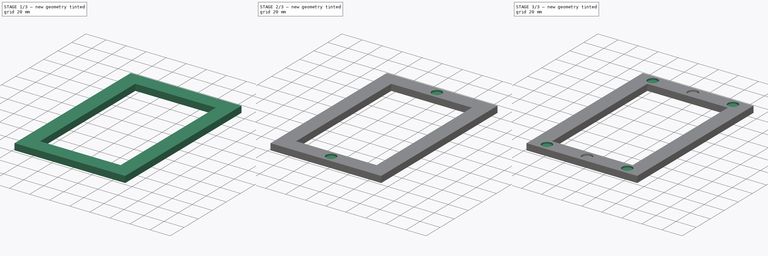
[diagram: build sequence overview — one tinted view per stage of 3, left to right]
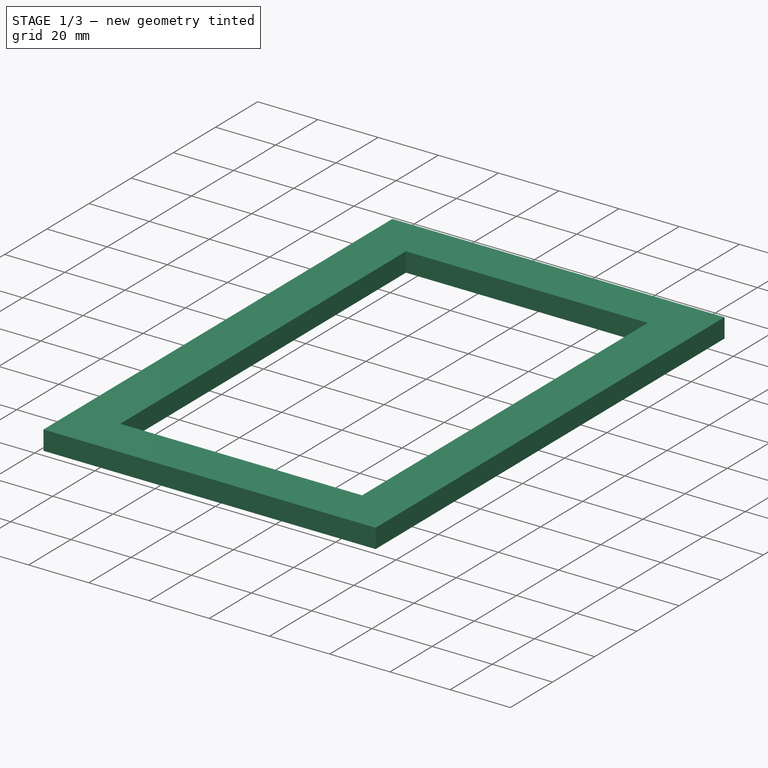
[diagram: stage 1 of 3 — iso view after this stage's code; geometry added in this stage tinted green]
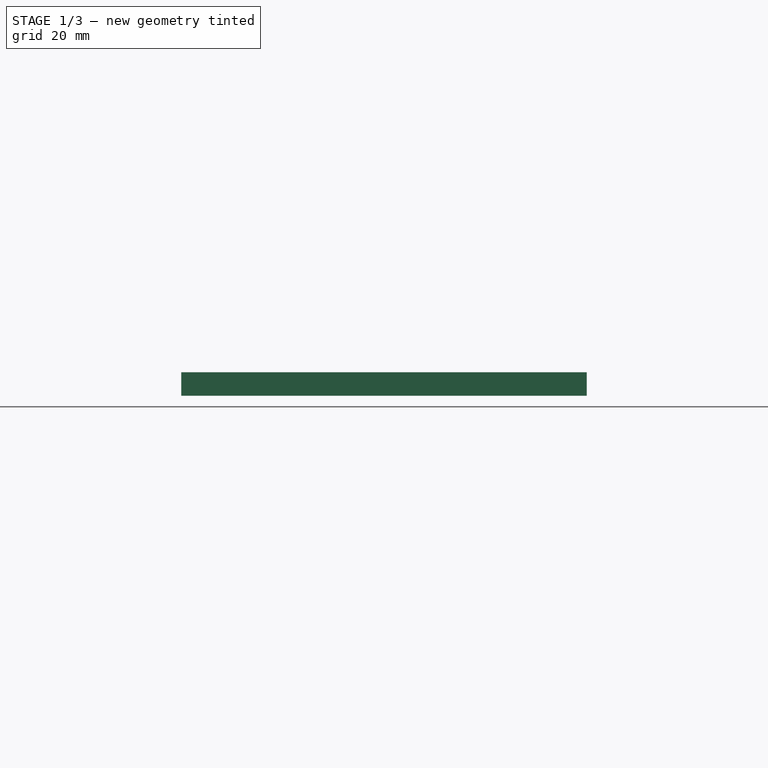
[diagram: stage 1 of 3 — front view after this stage's code; geometry added in this stage tinted green]
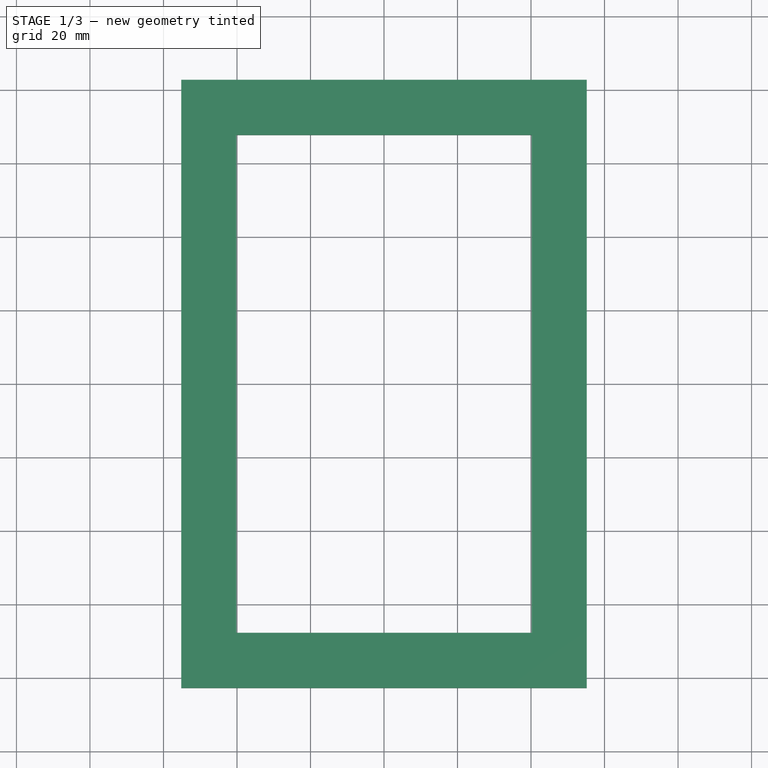
[diagram: stage 1 of 3 — top view after this stage's code; geometry added in this stage tinted green]
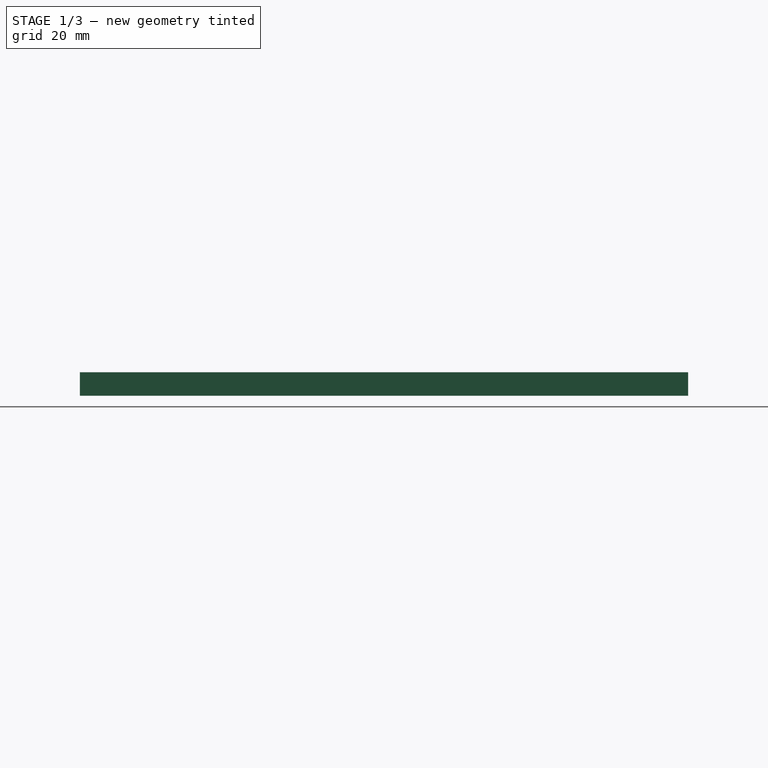
[diagram: stage 1 of 3 — right view after this stage's code; geometry added in this stage tinted green]
FCSTD DOCUMENT  (FreeCAD 0.21R33694 (Git))
Label: PSA_Frame
License: All rights reserved
LicenseURL: http://en.wikipedia.org/wiki/All_rights_reserved
objects: Sketcher::SketchObject×3, PartDesign::Pocket×2, PartDesign::LinearPattern×2, Spreadsheet::Sheet×1, PartDesign::Pad×1, PartDesign::Body×1, App::Part×1
note: 12 computed .brp shape members not serialized (recipe doc carries the construction recipe); baked Part::Feature solids carry a one-line shape summary decoded from their .brp

FEATURE [Spreadsheet::Sheet] Spreadsheet  label="prm"
  cells = A1='card_frame_width_inside; B1(card_frame_width)=80.32; A2='card_frame_height_inside; B2(card_frame_height)=135.5; A3='card_frame_thickness_inside; B3(card_frame_thickness)=6.4; A5='card_back_rest_top; A6='card_back_rest_bottom; A8='card_frame_width_outside; B8(card_frame_width_outside)==B1 + 30; A9='card_frame_height_outside; B9(card_frame_height_outside)==B2 + 30; A10='card_frame_thickness_outside; B10(card_frame_thickness_outside)==B3; A12='outer_frame_width; B12(outer_frame_width)=0; A13='outer_frame_height; B13(outer_frame_height)=0; A14='outer_frame_wall_thickness; B14(outer_frame_wall_thickness)=0; A15='outer_frame_face_thickness; B15(outer_frame_face_thickness)=0; A17='window_width; B17(window_width)=0; A18='window_height; B18(window_height)=0; A20='magnet_diameter; B20(magnet_diameter)=10.05; A21='magnet_depth; B21(magnet_depth)=1.645
FEATURE [Sketcher::SketchObject] Sketch
  FullyConstrained = true
  MapMode = 5
  Support = -> [XY_Plane001]
  expr: Constraints[10] = <<prm>>.card_frame_height_outside
  expr: Constraints[11] = <<prm>>.card_frame_width_outside
  sketch-geometry (5):
    g0: LineSegment StartX=-55.16 StartY=82.75 StartZ=0 EndX=-55.16 EndY=-82.75 EndZ=0
    g1: LineSegment StartX=-55.16 StartY=-82.75 StartZ=0 EndX=55.16 EndY=-82.75 EndZ=0
    g2: LineSegment StartX=55.16 StartY=-82.75 StartZ=0 EndX=55.16 EndY=82.75 EndZ=0
    g3: LineSegment StartX=55.16 StartY=82.75 StartZ=0 EndX=-55.16 EndY=82.75 EndZ=0
    g4: GeomPoint X=0 Y=0 Z=0
  constraints (12):
    c: Coincident(g0,g1)
    c: Coincident(g1,g2)
    c: Coincident(g2,g3)
    c: Coincident(g3,g0)
    c: Horizontal(g1)
    c: Horizontal(g3)
    c: Vertical(g0)
    c: Vertical(g2)
    c: Symmetric(g1,g0,g4)
    c: Coincident(g4,g-1)
    c: DistanceY(g0,g0) = 165.5
    c: DistanceX(g3,g3) = 110.32
FEATURE [PartDesign::Pad] Pad
  Direction = (0,0,1)
  Length = 6.4
  Length2 = 10
  Profile = -> Sketch
  ReferenceAxis = -> Sketch [N_Axis]
  Type = 0
  expr: Length = <<prm>>.card_frame_thickness_outside
FEATURE [Sketcher::SketchObject] Sketch001
  AttachmentOffset = pos=(0,0,6.4) rot=(0,0,1;0rad)
  FullyConstrained = true
  MapMode = 5
  Placement = pos=(0,0,6.4) rot=(0,0,1;0rad)
  Support = -> [XY_Plane001]
  expr: .AttachmentOffset.Base.z = <<prm>>.card_frame_thickness
  expr: Constraints[10] = <<prm>>.card_frame_width
  expr: Constraints[11] = <<prm>>.card_frame_height
  sketch-geometry (5):
    g0: LineSegment StartX=-40.16 StartY=67.75 StartZ=0 EndX=-40.16 EndY=-67.75 EndZ=0
    g1: LineSegment StartX=-40.16 StartY=-67.75 StartZ=0 EndX=40.16 EndY=-67.75 EndZ=0
    g2: LineSegment StartX=40.16 StartY=-67.75 StartZ=0 EndX=40.16 EndY=67.75 EndZ=0
    g3: LineSegment StartX=40.16 StartY=67.75 StartZ=0 EndX=-40.16 EndY=67.75 EndZ=0
    g4: GeomPoint X=0 Y=0 Z=0
  constraints (12):
    c: Coincident(g0,g1)
    c: Coincident(g1,g2)
    c: Coincident(g2,g3)
    c: Coincident(g3,g0)
    c: Horizontal(g1)
    c: Horizontal(g3)
    c: Vertical(g0)
    c: Vertical(g2)
    c: Symmetric(g1,g0,g4)
    c: Coincident(g4,g-1)
    c: DistanceX(g3,g3) = 80.32
    c: DistanceY(g0,g0) = 135.5
FEATURE [PartDesign::Pocket] Pocket
  BaseFeature = -> Pad
  Direction = (0,0,-1)
  Length = 5
  Length2 = 5
  Profile = -> Sketch001
  ReferenceAxis = -> Sketch001 [N_Axis]
  Type = 1
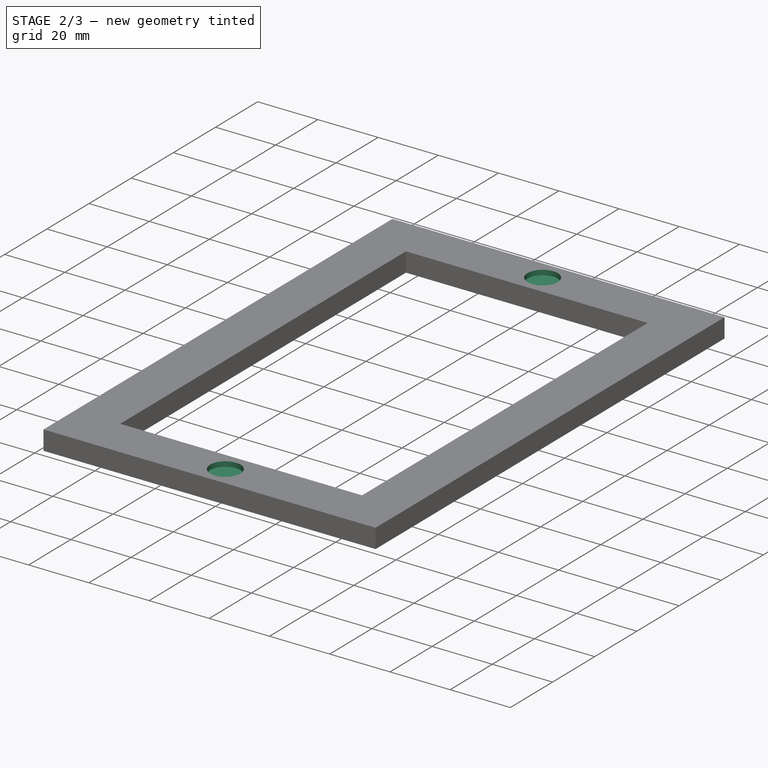
[diagram: stage 2 of 3 — iso view after this stage's code; geometry added in this stage tinted green]
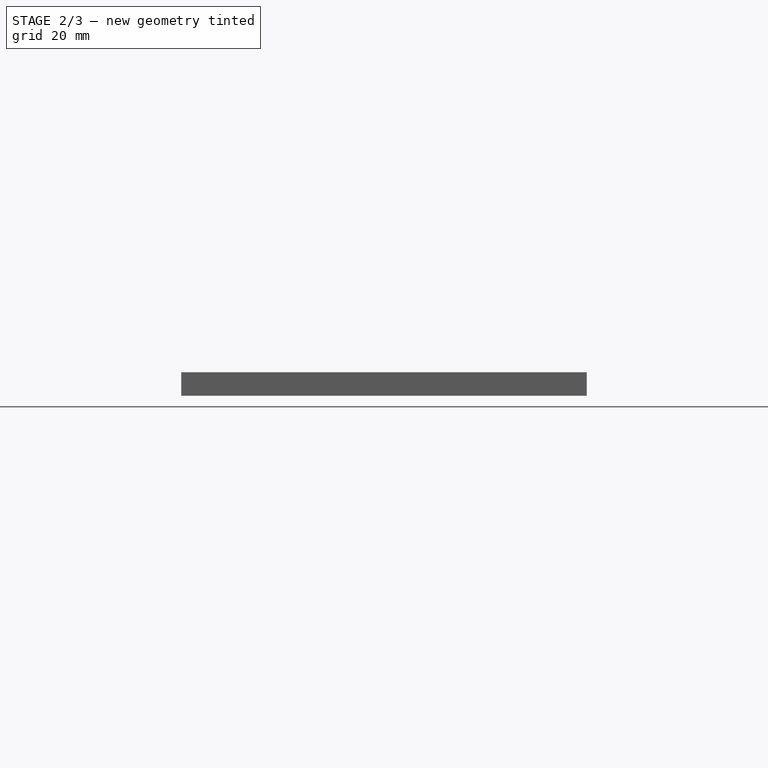
[diagram: stage 2 of 3 — front view after this stage's code; geometry added in this stage tinted green]
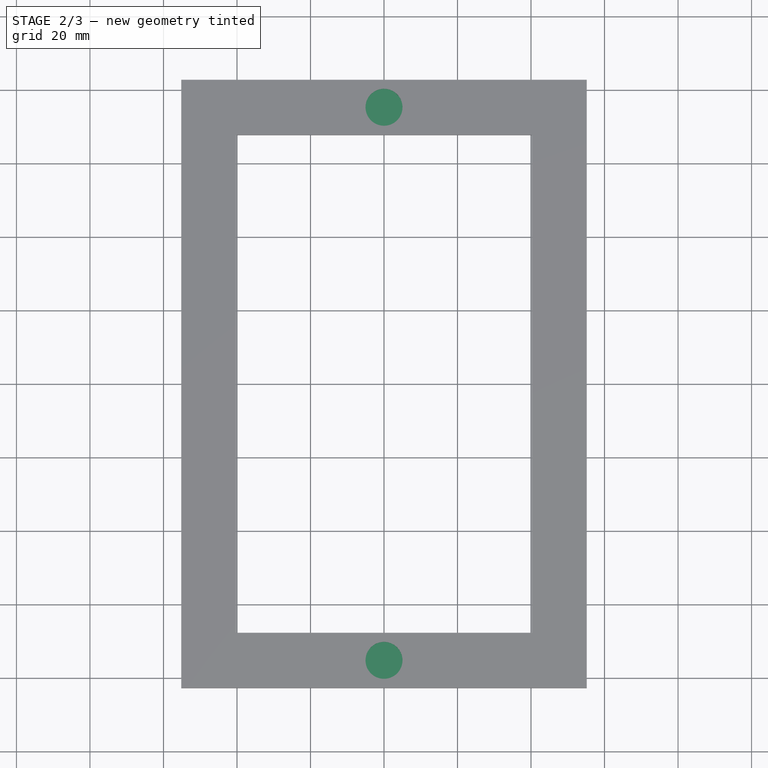
[diagram: stage 2 of 3 — top view after this stage's code; geometry added in this stage tinted green]
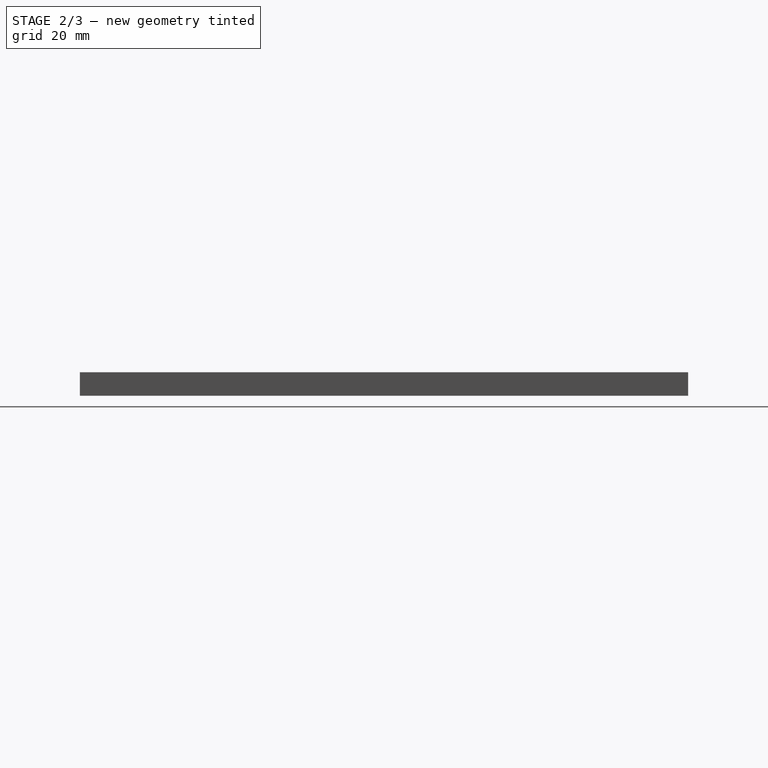
[diagram: stage 2 of 3 — right view after this stage's code; geometry added in this stage tinted green]
FEATURE [Sketcher::SketchObject] Sketch002
  AttachmentOffset = pos=(0,0,6.4) rot=(0,0,1;0rad)
  FullyConstrained = true
  MapMode = 5
  Placement = pos=(0,0,6.4) rot=(0,0,1;0rad)
  Support = -> [XY_Plane001]
  expr: .AttachmentOffset.Base.z = <<prm>>.card_frame_thickness
  expr: Constraints[1] = <<prm>>.magnet_diameter
  expr: Constraints[2] = <<prm>>.card_frame_height / 2 + (<<prm>>.card_frame_height_outside - <<prm>>.card_frame_height) / 4
  expr: Constraints[4] = <<prm>>.magnet_diameter
  expr: Constraints[5] = <<prm>>.card_frame_height / 2 + (<<prm>>.card_frame_height_outside - <<prm>>.card_frame_height) / 4
  sketch-geometry (2):
    g0: Circle CenterX=0 CenterY=75.25 CenterZ=0 NormalX=0 NormalY=0 NormalZ=1 AngleXU=0 Radius=5.025
    g1: Circle CenterX=0 CenterY=-75.25 CenterZ=0 NormalX=0 NormalY=0 NormalZ=1 AngleXU=0 Radius=5.025
  constraints (6):
    c: PointOnObject(g0,g-2)
    c: Diameter(g0) = 10.05
    c: DistanceY(g-1,g0) = 75.25
    c: PointOnObject(g1,g-2)
    c: Diameter(g1) = 10.05
    c: DistanceY(g1,g-1) = 75.25
FEATURE [PartDesign::Pocket] Pocket001
  BaseFeature = -> Pocket
  Direction = (0,0,-1)
  Length = 1.645
  Length2 = 5
  Profile = -> Sketch002
  ReferenceAxis = -> Sketch002 [N_Axis]
  Type = 0
  expr: Length = <<prm>>.magnet_depth
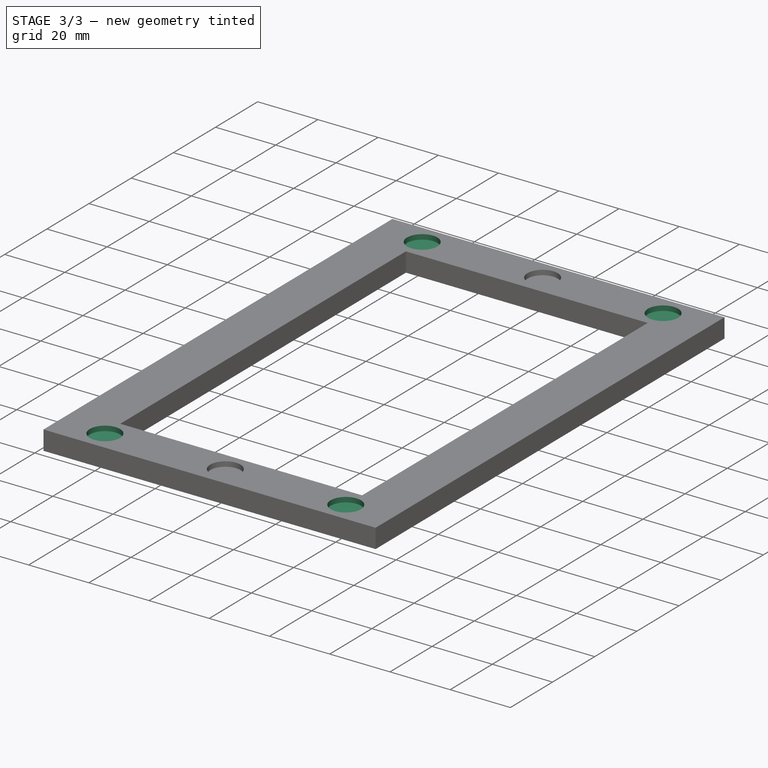
[diagram: stage 3 of 3 — iso view after this stage's code; geometry added in this stage tinted green]
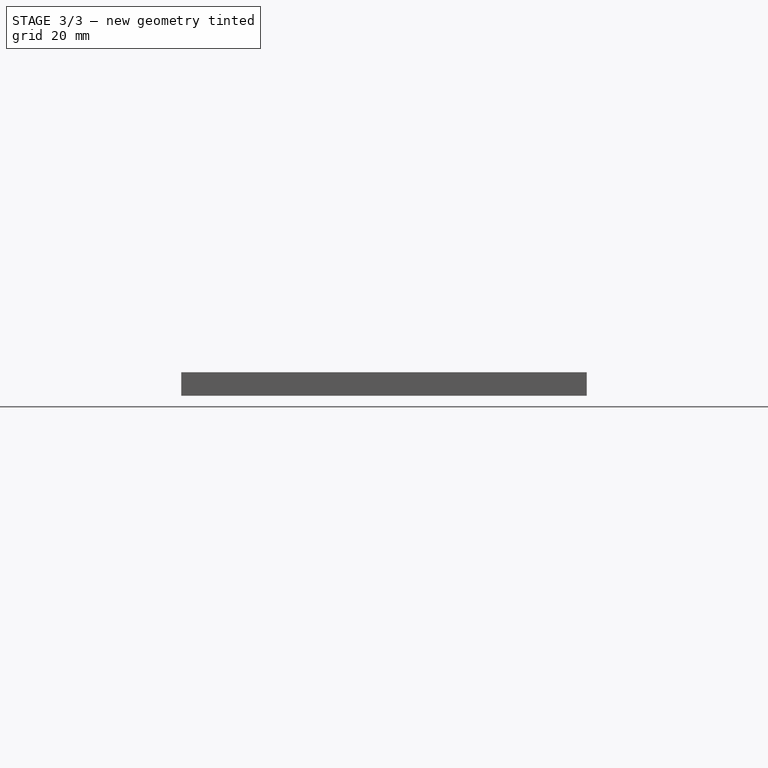
[diagram: stage 3 of 3 — front view after this stage's code; geometry added in this stage tinted green]
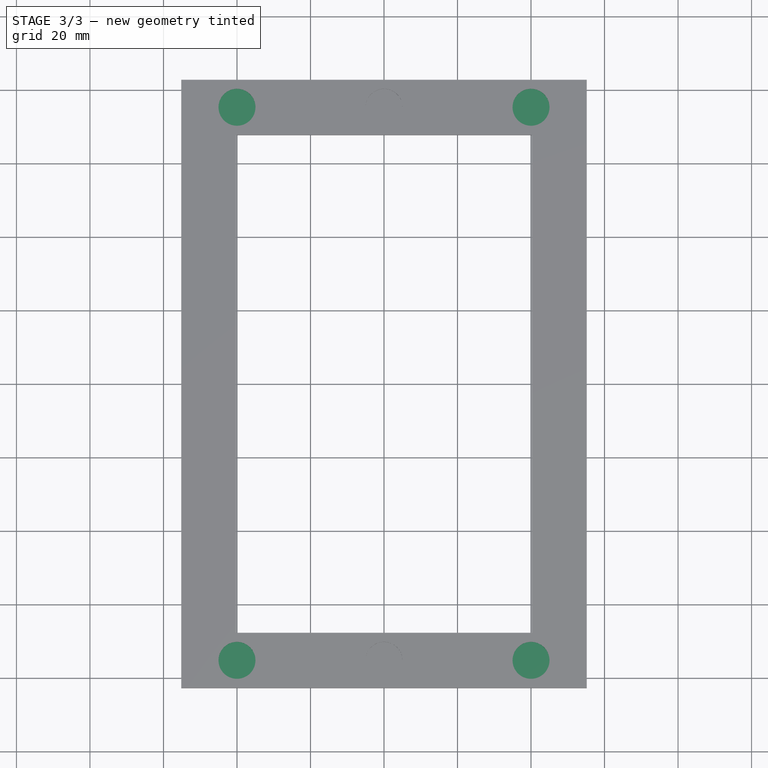
[diagram: stage 3 of 3 — top view after this stage's code; geometry added in this stage tinted green]
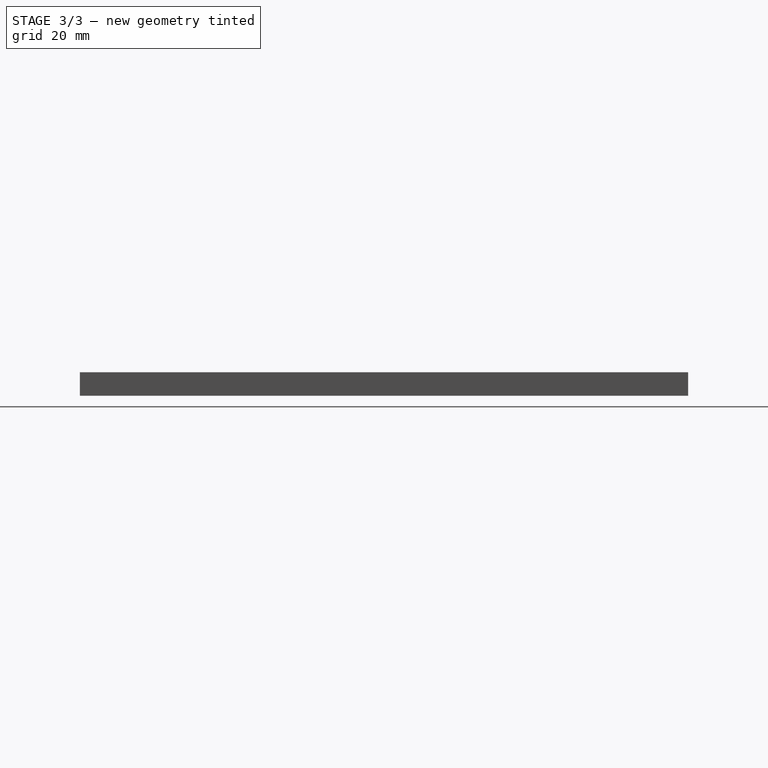
[diagram: stage 3 of 3 — right view after this stage's code; geometry added in this stage tinted green]
FEATURE [PartDesign::LinearPattern] LinearPattern
  BaseFeature = -> Pocket001
  Direction = -> X_Axis001
  Length = 40
  Occurrences = 2
  Originals = -> [Pocket001]
FEATURE [PartDesign::LinearPattern] LinearPattern001
  BaseFeature = -> LinearPattern
  Direction = -> X_Axis001
  Length = 40
  Occurrences = 2
  Originals = -> [Pocket001]
  Reversed = true
FEATURE [PartDesign::Body] Body
  Group = -> [Sketch,Pad,Sketch001,Pocket,Sketch002,Pocket001,LinearPattern,LinearPattern001]
  Origin = -> Origin001
  Tip = -> LinearPattern001
FEATURE [App::Part] Part
  Group = -> [Body]
  Origin = -> Origin
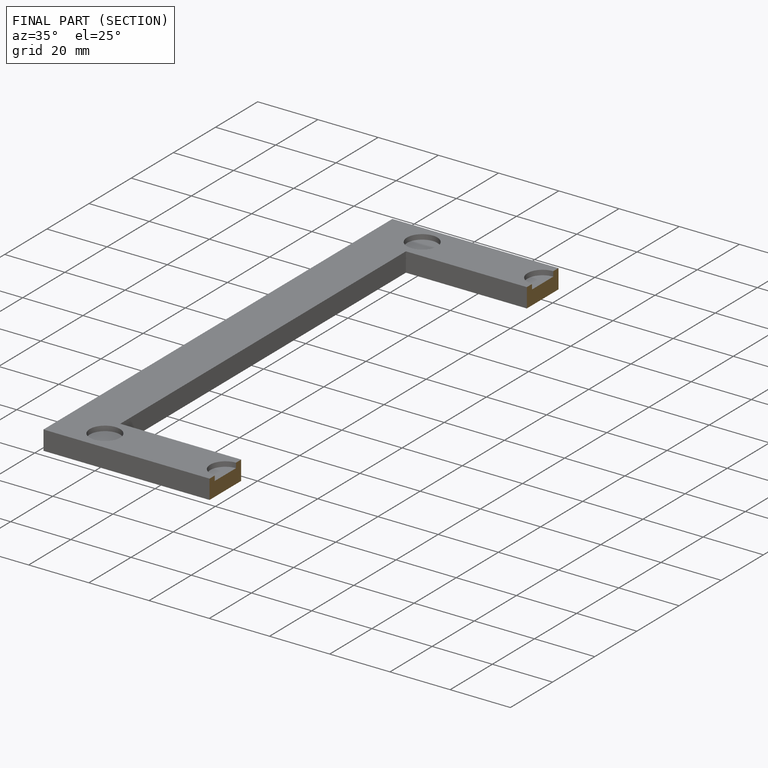
[diagram: finished part — half-section view (interior)]
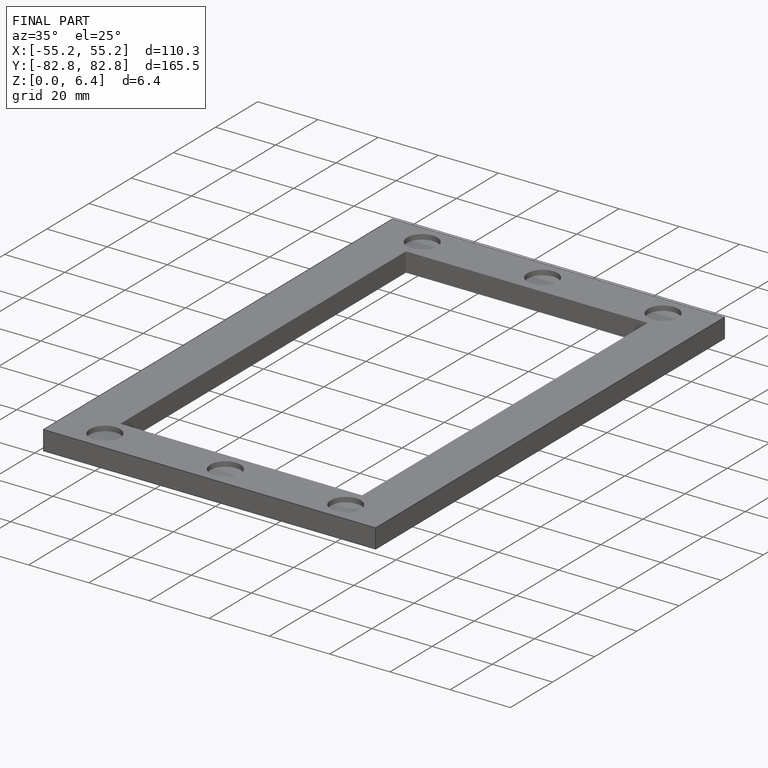
[diagram: finished part — iso view with bounding-box wireframe]
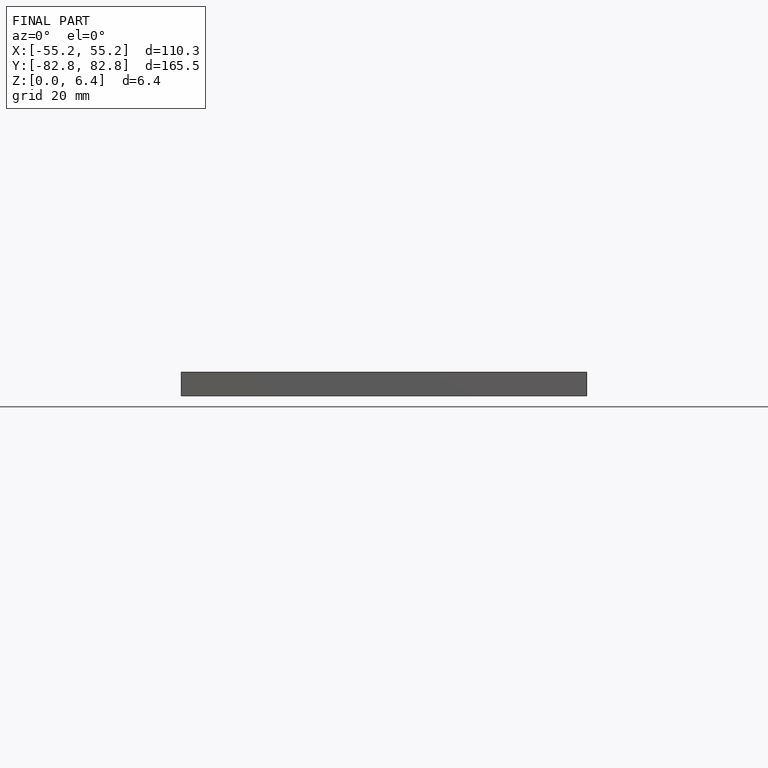
[diagram: finished part — front view with bounding-box wireframe]
